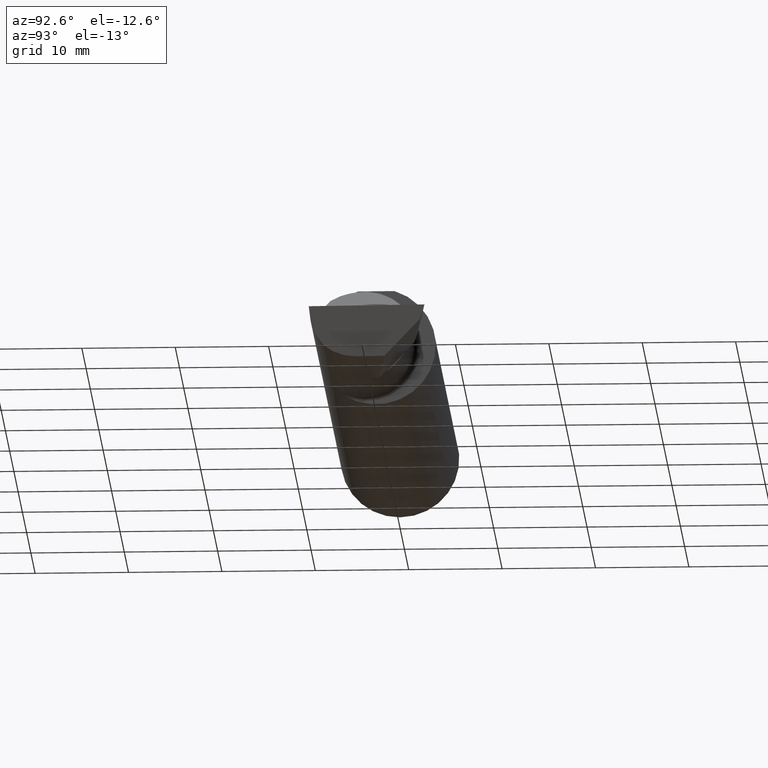
[diagram: clean part render]
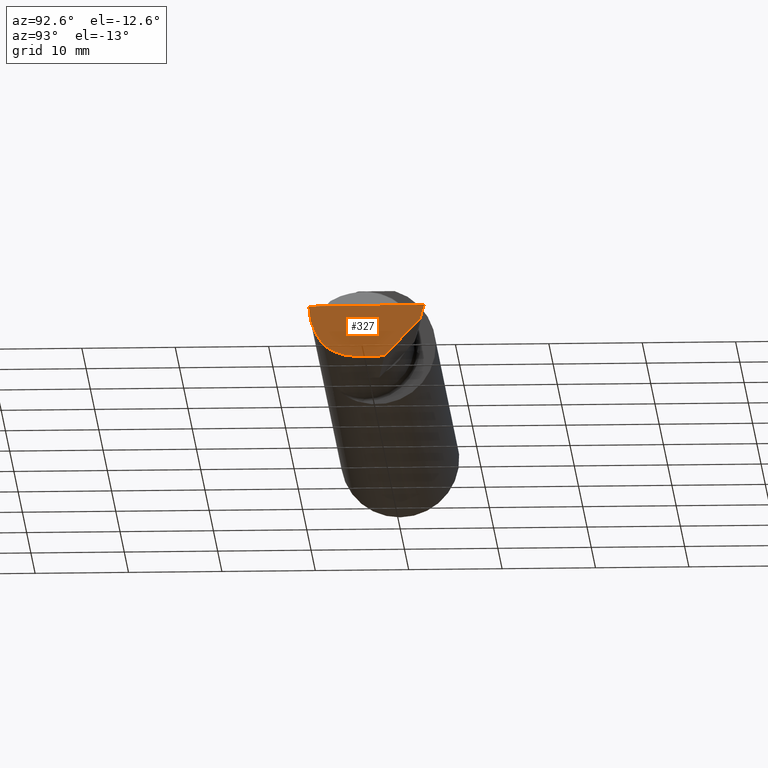
[diagram: same view with one face highlighted and labeled with its STEP entity id]
A machine part, auxiliary view. The second image highlights one B-rep face of the part: STEP entity #327.
In plain terms, the highlighted planar face has unit normal (-0.9922, 0.026, 0.1219).
Its self-contained STEP definition (entity closure, byte-faithful):
#8 = LINE ( 'NONE', #450, #135 ) ;
#66 = CARTESIAN_POINT ( 'NONE',  ( 2.963949576795525065, -0.1303119248116722251, -0.2149526021148594479 ) ) ;
#67 = ORIENTED_EDGE ( 'NONE', *, *, #766, .F. ) ;
#70 = VERTEX_POINT ( 'NONE', #359 ) ;
#111 = CARTESIAN_POINT ( 'NONE',  ( 2.991023571893946631, 0.2162715254282616684, -0.06841772571930096469 ) ) ;
#122 = EDGE_CURVE ( 'NONE', #370, #354, #415, .T. ) ;
#124 = DIRECTION ( 'NONE',  ( -0.02617694830787789181, -0.9996573249755572599, 1.706819910991413033E-16 ) ) ;
#125 = CARTESIAN_POINT ( 'NONE',  ( 2.964907988924523341, -0.1021668565906570375, -0.2131499999999998396 ) ) ;
#133 = AXIS2_PLACEMENT_3D ( 'NONE', #66, #720, #377 ) ;
#135 = VECTOR ( 'NONE', #571, 39.37007874015748143 ) ;
#182 = EDGE_LOOP ( 'NONE', ( #211, #67, #585, #714, #562, #728 ) ) ;
#196 = CARTESIAN_POINT ( 'NONE',  ( 2.983714411583737736, 0.1632262006094381268, -0.1166167083458163334 ) ) ;
#199 = EDGE_CURVE ( 'NONE', #664, #70, #730, .T. ) ;
#211 = ORIENTED_EDGE ( 'NONE', *, *, #324, .T. ) ;
#219 = CARTESIAN_POINT ( 'NONE',  ( 2.968492717492762889, -0.1868028301886794917, -0.1659208399614086338 ) ) ;
#239 = EDGE_CURVE ( 'NONE', #70, #370, #8, .T. ) ;
#251 = CARTESIAN_POINT ( 'NONE',  ( 2.965703997523711166, -0.1485302233682059825, -0.1967848538638755918 ) ) ;
#266 = CARTESIAN_POINT ( 'NONE',  ( 2.987221270274242446, -0.2498499999999999888, -6.495015745097940340E-17 ) ) ;
#302 = VERTEX_POINT ( 'NONE', #768 ) ;
#314 = PLANE ( 'NONE',  #133 ) ;
#324 = EDGE_CURVE ( 'NONE', #664, #302, #616, .T. ) ;
#327 = ADVANCED_FACE ( 'NONE', ( #699 ), #314, .F. ) ;
#354 = VERTEX_POINT ( 'NONE', #381 ) ;
#356 = VECTOR ( 'NONE', #727, 39.37007874015748854 ) ;
#359 = CARTESIAN_POINT ( 'NONE',  ( 2.987221270274242446, -0.2498499999999999888, -6.495015745097940340E-17 ) ) ;
#370 = VERTEX_POINT ( 'NONE', #665 ) ;
#373 = EDGE_CURVE ( 'NONE', #354, #503, #507, .T. ) ;
#377 = DIRECTION ( 'NONE',  ( 0.1219104985253027240, 0.0000000000000000000, 0.9925410975618652598 ) ) ;
#381 = CARTESIAN_POINT ( 'NONE',  ( 2.992127980275568255, 0.2189633278254531357, -0.05999999999999998390 ) ) ;
#392 = CARTESIAN_POINT ( 'NONE',  ( 2.973097331270539989, -0.2278791102234774824, -0.1196748990301325366 ) ) ;
#395 = VECTOR ( 'NONE', #760, 39.37007874015748143 ) ;
#415 = LINE ( 'NONE', #111, #395 ) ;
#450 = CARTESIAN_POINT ( 'NONE',  ( 2.987226101480009444, -0.2496655036952227236, -6.495142247650542032E-17 ) ) ;
#476 = CARTESIAN_POINT ( 'NONE',  ( 2.969369008890594408, 0.06819262280682646116, -0.2131499999999999506 ) ) ;
#503 = VERTEX_POINT ( 'NONE', #476 ) ;
#507 = LINE ( 'NONE', #196, #356 ) ;
#541 = VECTOR ( 'NONE', #124, 39.37007874015748143 ) ;
#554 = CARTESIAN_POINT ( 'NONE',  ( 2.966195468375010247, -0.05299999999999998462, -0.2131499999999999229 ) ) ;
#560 = LINE ( 'NONE', #604, #541 ) ;
#562 = ORIENTED_EDGE ( 'NONE', *, *, #239, .F. ) ;
#571 = DIRECTION ( 'NONE',  ( 0.02617694830787790569, 0.9996573249755572599, -6.854294642359119493E-18 ) ) ;
#585 = ORIENTED_EDGE ( 'NONE', *, *, #373, .F. ) ;
#603 = CARTESIAN_POINT ( 'NONE',  ( 2.968492717492762889, -0.1868028301886794917, -0.1659208399614086338 ) ) ;
#604 = CARTESIAN_POINT ( 'NONE',  ( 2.966218632342874972, -0.05211540375603046504, -0.2131499999999999229 ) ) ;
#616 =( BOUNDED_CURVE ( )  B_SPLINE_CURVE ( 3, ( #603, #251, #125, #554 ),
 .UNSPECIFIED., .F., .T. ) 
 B_SPLINE_CURVE_WITH_KNOTS ( ( 4, 4 ),
 ( 5.814587959757516522, 6.493234751459755039 ),
 .UNSPECIFIED. ) 
 CURVE ( )  GEOMETRIC_REPRESENTATION_ITEM ( )  RATIONAL_B_SPLINE_CURVE ( ( 1.000000000000000000, 0.9619867256453025206, 0.9619867256453025206, 1.000000000000000000 ) ) 
 REPRESENTATION_ITEM ( '' )  );
#664 = VERTEX_POINT ( 'NONE', #219 ) ;
#665 = CARTESIAN_POINT ( 'NONE',  ( 3.000000000000025313, 0.2381500000000423833, 1.300359644984189189E-13 ) ) ;
#671 = CARTESIAN_POINT ( 'NONE',  ( 2.979623920331827769, -0.2498500000000000443, -0.06185424669427492389 ) ) ;
#699 = FACE_OUTER_BOUND ( 'NONE', #182, .T. ) ;
#714 = ORIENTED_EDGE ( 'NONE', *, *, #122, .F. ) ;
#720 = DIRECTION ( 'NONE',  ( -0.9922060308645452853, 0.02598182930469796620, 0.1218693434051672936 ) ) ;
#727 = DIRECTION ( 'NONE',  ( -0.1053106618241988618, -0.6976485211320166968, -0.7086580314005191950 ) ) ;
#728 = ORIENTED_EDGE ( 'NONE', *, *, #199, .F. ) ;
#730 =( BOUNDED_CURVE ( )  B_SPLINE_CURVE ( 3, ( #733, #392, #671, #266 ),
 .UNSPECIFIED., .F., .T. ) 
 B_SPLINE_CURVE_WITH_KNOTS ( ( 4, 4 ),
 ( 0.6344818218798460308, 1.360746882514727307 ),
 .UNSPECIFIED. ) 
 CURVE ( )  GEOMETRIC_REPRESENTATION_ITEM ( )  RATIONAL_B_SPLINE_CURVE ( ( 1.000000000000000000, 0.9565258159410997552, 0.9565258159410997552, 1.000000000000000000 ) ) 
 REPRESENTATION_ITEM ( '' )  );
#733 = CARTESIAN_POINT ( 'NONE',  ( 2.968492717492762889, -0.1868028301886794917, -0.1659208399614086338 ) ) ;
#760 = DIRECTION ( 'NONE',  ( -0.1240019227989550277, -0.3022330132596655061, -0.9451342385281282787 ) ) ;
#766 = EDGE_CURVE ( 'NONE', #503, #302, #560, .T. ) ;
#768 = CARTESIAN_POINT ( 'NONE',  ( 2.966195468375010247, -0.05299999999999998462, -0.2131499999999999229 ) ) ;